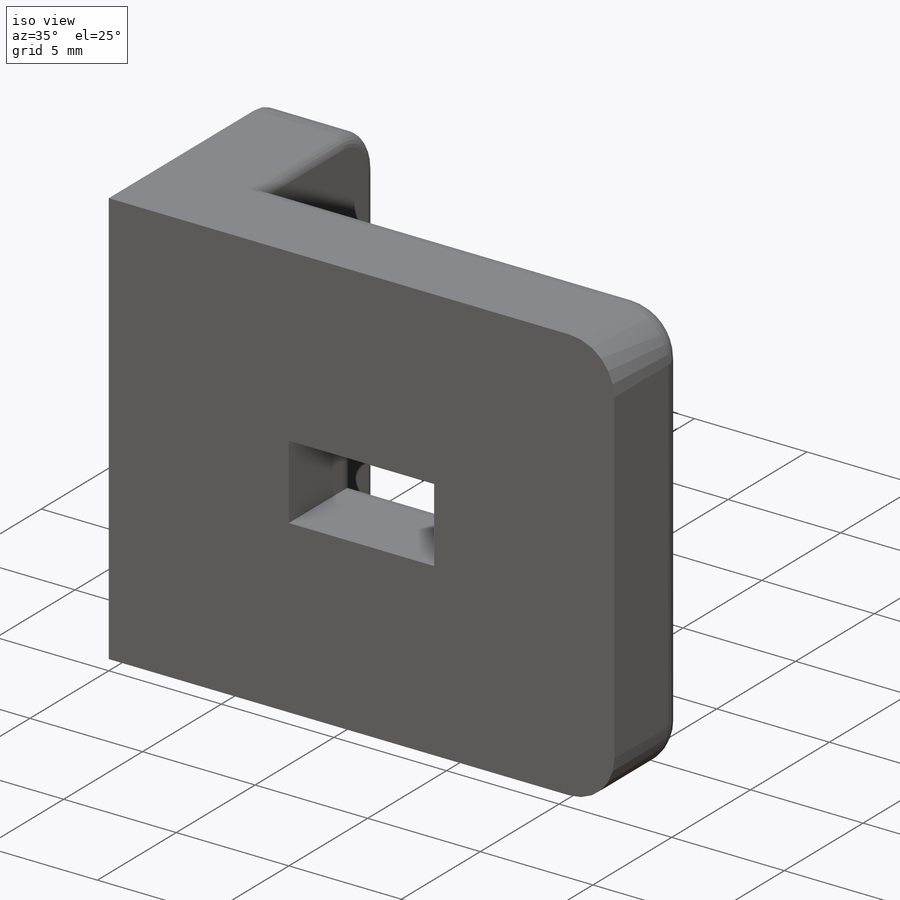
[diagram: iso view]
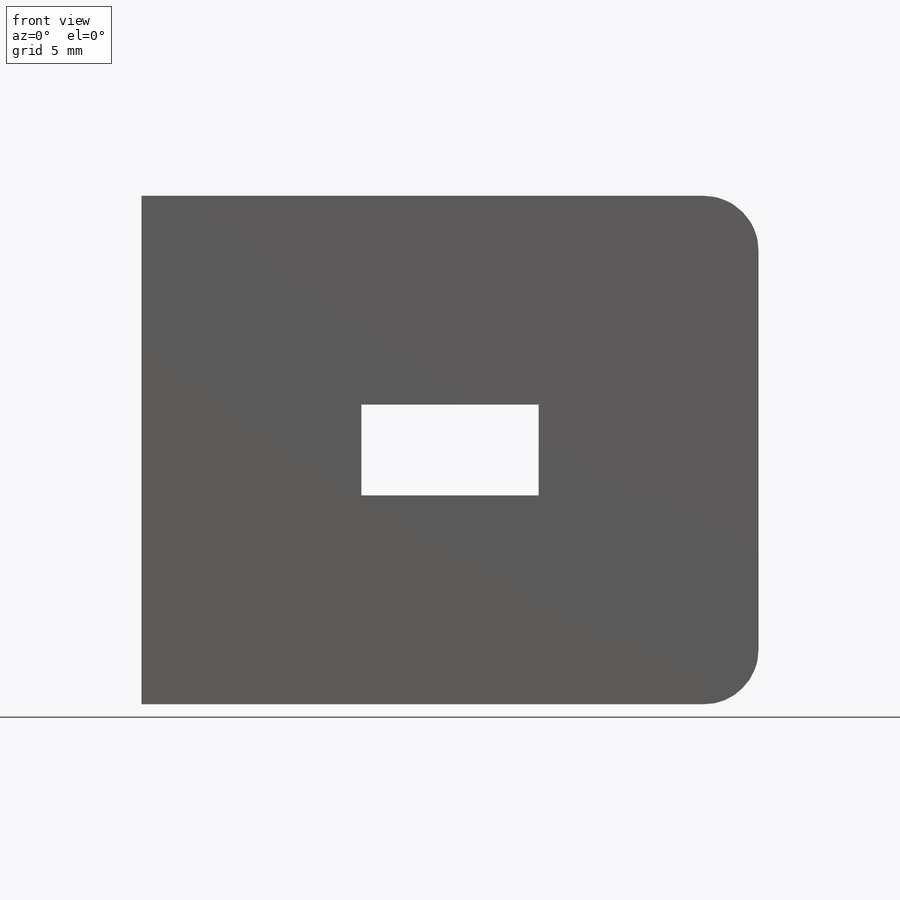
[diagram: front view]
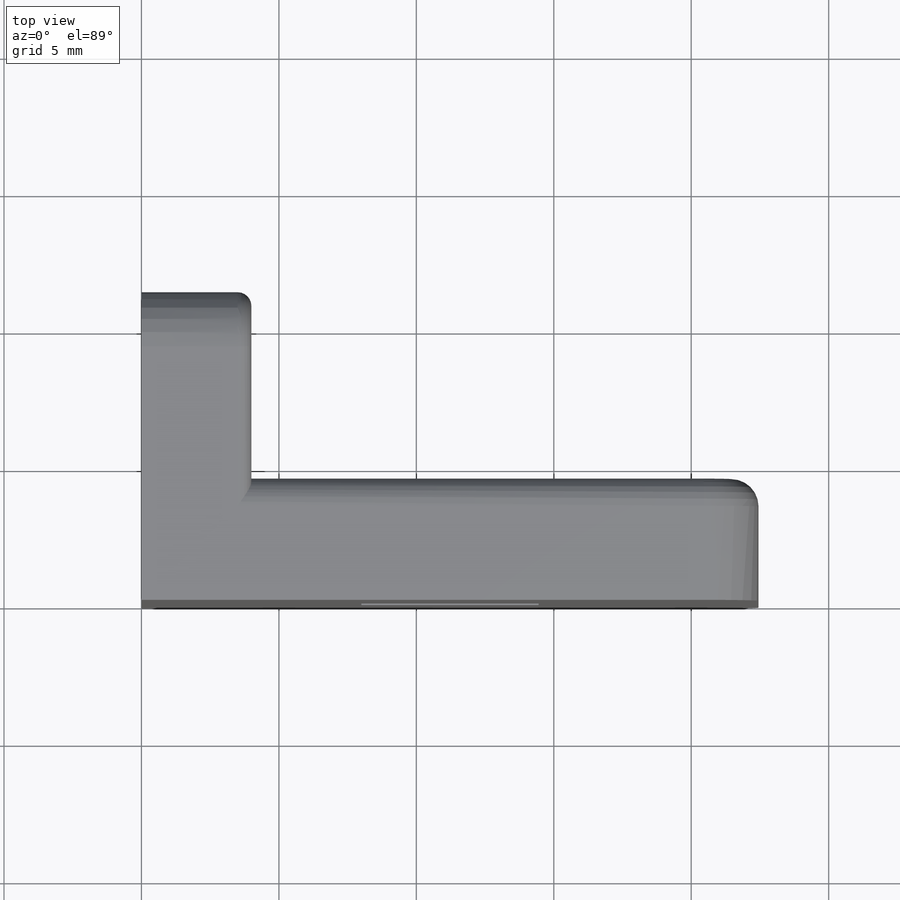
[diagram: top view]
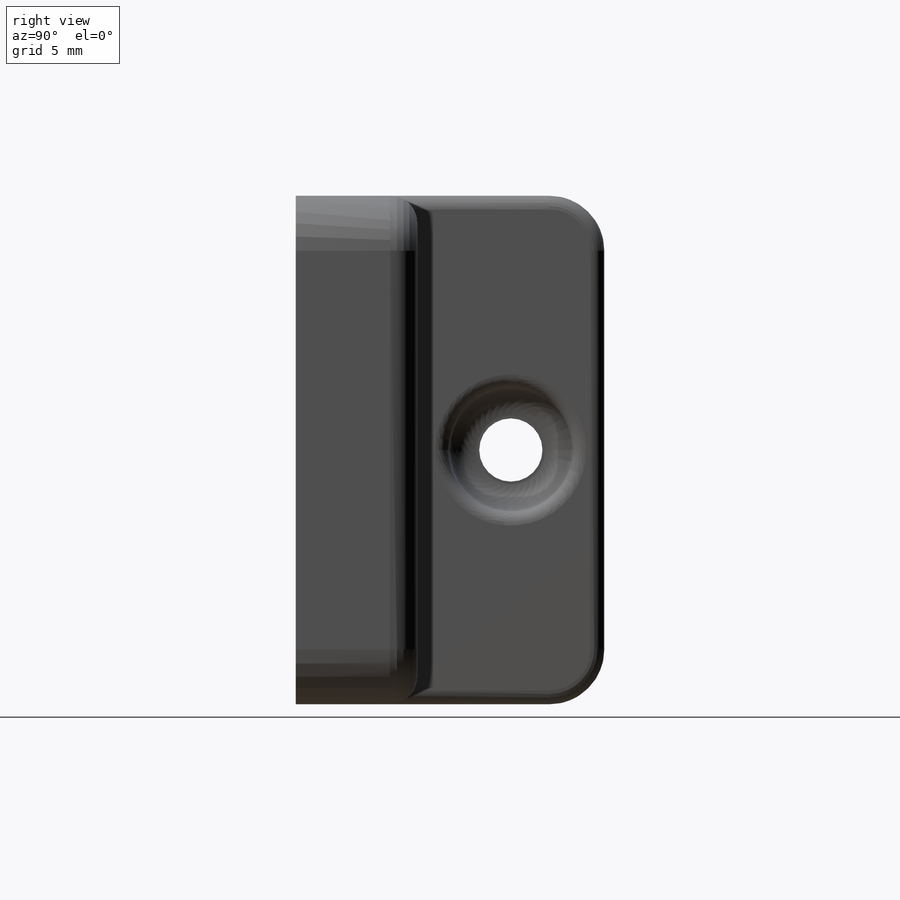
[diagram: right view]
SOLIDWORKS PART (.sldprt)
format: sldprt  version: not decoded by parser v0  size: 352,768 bytes
history: native  units: mm
features: fillet x9, sketch x4, cut_extrude x3, material x1, extrude x1 (+13 scaffold rows collapsed)
feature tree (31):
  scaffold x13  (default folders/planes/origin — collapsed)
  material  "Material <not specified>"
  sketch  "Sketch1"  dims[c1.D1=4.0mm c1.D2=6.8mm c1.D3=6.8mm c2.D3=~178.558901deg c3.D3=~11.223529mm c4.D3=~1.441099deg c5.D3=22.45mm]
  extrude  "Boss-Extrude1"  Depth=18.5mm
  sketch  "Sketch2"  dims[D1=7.6mm D2=7.6mm D3=8.0mm D4=8.0mm D5=6.85mm]
  cut_extrude  "Cut-Extrude1"  Depth=4.5mm
  sketch  "Sketch3"  dims[D1=~4.42724mm]
  cut_extrude  "Cut-Extrude2"  Depth=1.75mm
  sketch  "Sketch4"  dims[D1=~1.373537mm]
  cut_extrude  "Cut-Extrude3"  Depth=2.3mm
  fillet  "Fillet3"  Radius=2mm
  fillet  "Fillet4"  Radius=2mm
  fillet  "Fillet5"  Radius=2mm
  fillet  "Fillet6"  Radius=2mm
  fillet  "Fillet7"  Radius=1mm
  fillet  "Fillet8"  Radius=0.5mm
  fillet  "Fillet9"  Radius=1mm
  fillet  "Fillet10"  Radius=1mm
  fillet  "Fillet12"  Radius=0.5mm
decode coverage: 17 of 17 modeling features carry decoded parameters
note: ~ marks probable driven/reference dimensions
note: suppression state not decoded; provenance and decode notes live in map.json
